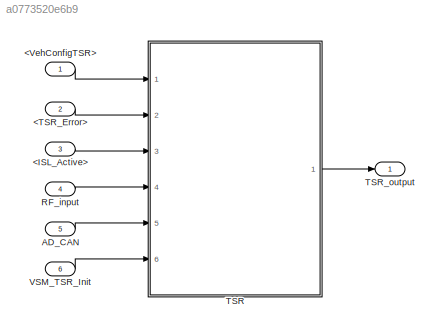
MODEL slx_a0773520e6b9
KIND model
CONFIG AbsTol = auto
CONFIG EnableMultiTasking = off
CONFIG FixedStep = auto
CONFIG InitFcn = , if any(exist('dsmpb_private', 'file') ~= 0), dsmpb_private('dsmpb_mdlclblib', 'Init', bdroot); end,\n
CONFIG MaxStep = auto
CONFIG MinStep = auto
CONFIG PostLoadFcn = if any(exist('dsrtsu_mdlpostloadfcn', 'file') ~= 0), dsrtsu_mdlpostloadfcn('Execute', bdroot); end
CONFIG RelTol = 1e-3
CONFIG SampleTimeConstraint = Unconstrained
CONFIG SolverName = FixedStepAuto
CONFIG StartTime = 0.0
CONFIG StopTime = Inf
BLOCK [Inport] <ISL_Active>
  Port = 3
BLOCK [Inport] <TSR_Error>
  Port = 2
BLOCK [Inport] <VehConfigTSR>
BLOCK [Inport] AD_CAN
  OutDataTypeStr = Bus: AD_TSR_CAN
  Port = 5
BLOCK [Inport] RF_input
  OutDataTypeStr = Bus: RFM_TSR_BUS
  Port = 4
BLOCK [SubSystem] TSR
  Ports = [6, 1]
  ReferencedSubsystem = PvtSubSys_VSM_TSR
  RequestExecContextInheritance = off
BLOCK [Outport] TSR_output
  OutDataTypeStr = Bus: TSR_BUS
BLOCK [Inport] VSM_TSR_Init
  OutDataTypeStr = Bus: VSM_TSR_INIT_BUS
  Port = 6
LINE <ISL_Active>:1 -> TSR:3
LINE <TSR_Error>:1 -> TSR:2
LINE <VehConfigTSR>:1 -> TSR:1
LINE AD_CAN:1 -> TSR:5
LINE RF_input:1 -> TSR:4
LINE TSR:1 -> TSR_output:1
LINE VSM_TSR_Init:1 -> TSR:6
